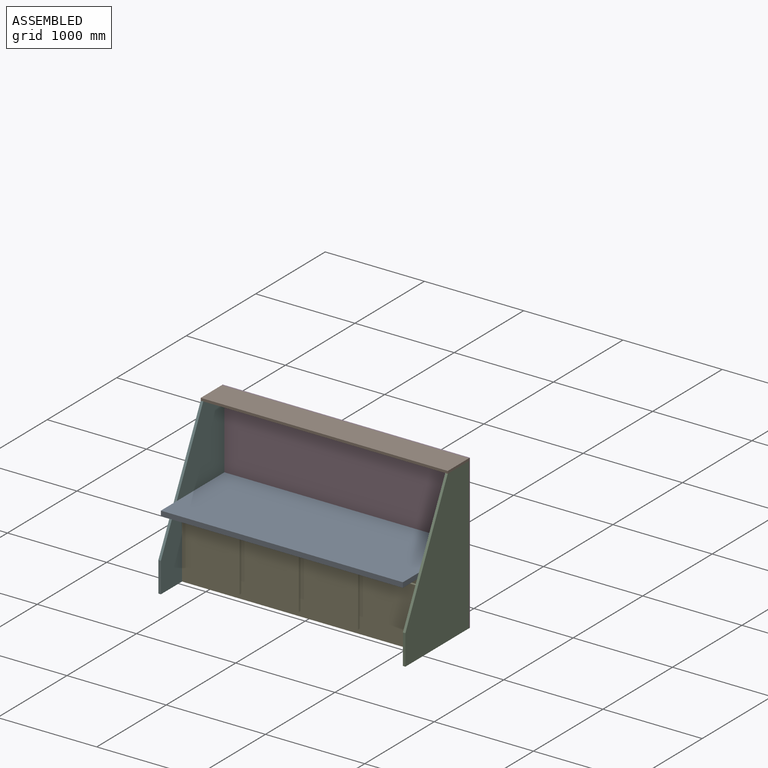
[diagram: assembled view]
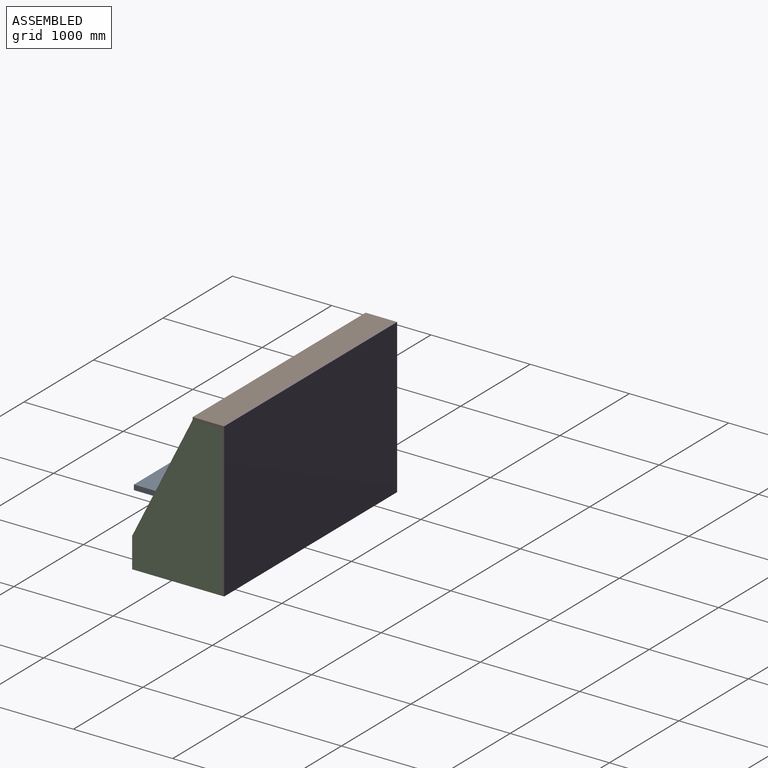
[diagram: assembled view, second angle]
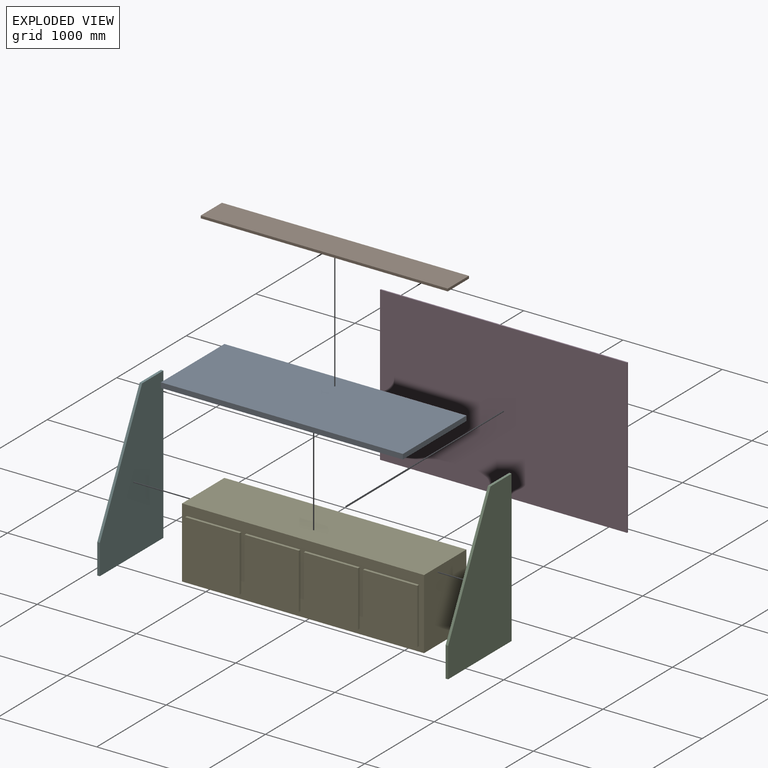
[diagram: exploded view]
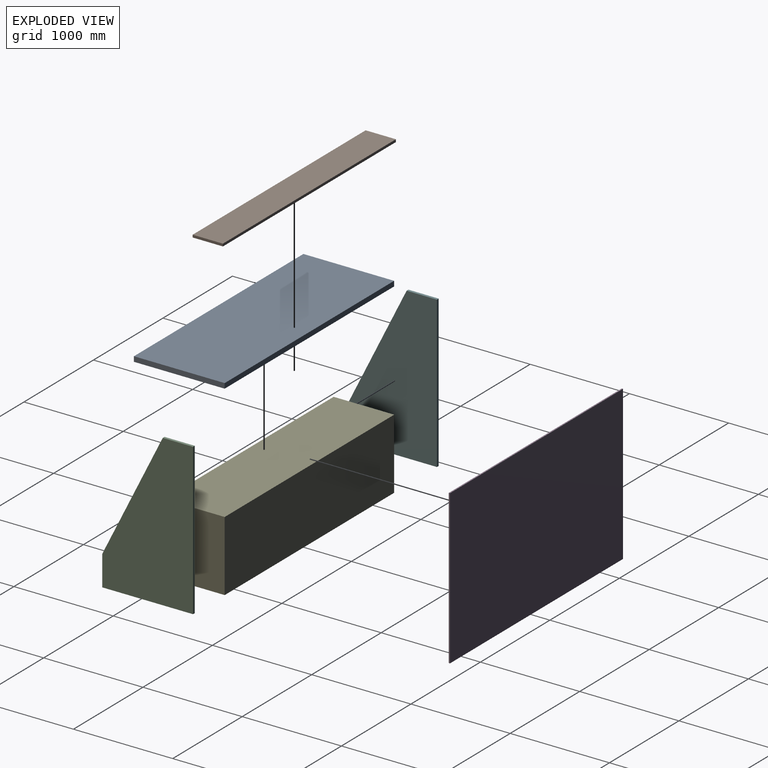
[diagram: exploded view, second angle]
ASSEMBLY  parts=6 mates=5
PART A: 6 faces, bbox 2438.4x914.4x50.8 mm
  f0: plane 2438.4x914.4mm, normal (0,0,1), area 2229673mm2, adj f1,f3,f4,f5
  f1: plane 2438.4x50.8mm, normal (0,-1,0), area 123870.7mm2, adj f0,f2,f4,f5
  f2: plane 2438.4x914.4mm, normal (0,0,-1), area 2229673mm2, adj f1,f3,f4,f5
  f3: plane 2438.4x50.8mm, normal (0,1,0), area 123870.7mm2, adj f0,f2,f4,f5
  f4: plane 914.4x50.8mm, normal (-1,0,0), area 46451.5mm2, adj f0,f1,f2,f3
  f5: plane 914.4x50.8mm, normal (1,0,0), area 46451.5mm2, adj f0,f1,f2,f3
PART B: 6 faces, bbox 2489.2x304.8x25.4 mm
  f0: plane 2489.2x25.4mm, normal (0,-1,0), area 63225.7mm2, adj f1,f3,f4,f5
  f1: plane 2489.2x304.8mm, normal (0,0,-1), area 758708.2mm2, adj f0,f2,f4,f5
  f2: plane 2489.2x25.4mm, normal (0,1,0), area 63225.7mm2, adj f1,f3,f4,f5
  f3: plane 2489.2x304.8mm, normal (0,0,1), area 758708.2mm2, adj f0,f2,f4,f5
  f4: plane 304.8x25.4mm, normal (-1,0,0), area 7741.9mm2, adj f0,f1,f2,f3
  f5: plane 304.8x25.4mm, normal (1,0,0), area 7741.9mm2, adj f0,f1,f2,f3
PART C: 7 faces, bbox 25.4x914.4x1524 mm
  f0: plane 304.8x25.4mm, normal (0,0,1), area 7741.9mm2, adj f1,f4,f5,f6
  f1: plane 1219.2x609.6mm, normal (0,-0.89,0.45), area 34622.9mm2, adj f0,f2,f5,f6
  f2: plane 304.8x25.4mm, normal (0,-1,0), area 7741.9mm2, adj f1,f3,f5,f6
  f3: plane 914.4x25.4mm, normal (0,0,-1), area 23225.8mm2, adj f2,f4,f5,f6
  f4: plane 1524x25.4mm, normal (0,1,0), area 38709.6mm2, adj f0,f3,f5,f6
  f5: plane 1524x914.4mm, normal (1,0,0), area 1021933.4mm2, adj f0,f1,f2,f3,f4
  f6: plane 1524x914.4mm, normal (-1,0,0), area 1021933.4mm2, adj f0,f1,f2,f3,f4
PART D: 6 faces, bbox 2489.2x12.7x1549.4 mm
  f0: plane 2489.2x12.7mm, normal (0,0,-1), area 31612.8mm2, adj f1,f3,f4,f5
  f1: plane 1549.4x12.7mm, normal (1,0,0), area 19677.4mm2, adj f0,f2,f4,f5
  f2: plane 2489.2x12.7mm, normal (0,0,1), area 31612.8mm2, adj f1,f3,f4,f5
  f3: plane 1549.4x12.7mm, normal (-1,0,0), area 19677.4mm2, adj f0,f2,f4,f5
  f4: plane 2489.2x1549.4mm, normal (0,1,0), area 3856766.5mm2, adj f0,f1,f2,f3
  f5: plane 2489.2x1549.4mm, normal (0,-1,0), area 3856766.5mm2, adj f0,f1,f2,f3
PART E: 26 faces, bbox 2438.4x635x711.2 mm
  f0: plane 2438.4x711.2mm, normal (0,-1,0), area 513547.4mm2, adj f1,f3,f4,f5,f6,f7,f8,f9
  f1: plane 2438.4x609.6mm, normal (0,0,-1), area 1486448.6mm2, adj f0,f2,f4,f5
  f2: plane 2438.4x711.2mm, normal (0,1,0), area 1734190.1mm2, adj f1,f3,f4,f5
  f3: plane 2438.4x609.6mm, normal (0,0,1), area 1486448.6mm2, adj f0,f2,f4,f5
  f4: plane 711.2x609.6mm, normal (-1,0,0), area 433547.5mm2, adj f0,f1,f2,f3
  f5: plane 711.2x609.6mm, normal (1,0,0), area 433547.5mm2, adj f0,f1,f2,f3
  f6: plane 558.8x25.4mm, normal (-1,0,0), area 14193.5mm2, adj f0,f7,f9,f10
  f7: plane 546.1x25.4mm, normal (0,0,-1), area 13870.9mm2, adj f0,f6,f8,f10
  f8: plane 558.8x25.4mm, normal (1,0,0), area 14193.5mm2, adj f0,f7,f9,f10
  f9: plane 546.1x25.4mm, normal (0,0,1), area 13870.9mm2, adj f0,f6,f8,f10
  f10: plane 558.8x546.1mm, normal (0,-1,0), area 305160.7mm2, adj f6,f7,f8,f9
  f11: plane 546.1x25.4mm, normal (0,0,-1), area 13870.9mm2, adj f0,f12,f14,f15
  f12: plane 558.8x25.4mm, normal (1,0,0), area 14193.5mm2, adj f0,f11,f13,f15
  f13: plane 546.1x25.4mm, normal (0,0,1), area 13870.9mm2, adj f0,f12,f14,f15
  f14: plane 558.8x25.4mm, normal (-1,0,0), area 14193.5mm2, adj f0,f11,f13,f15
  f15: plane 558.8x546.1mm, normal (0,-1,0), area 305160.7mm2, adj f11,f12,f13,f14
  f16: plane 546.1x25.4mm, normal (0,0,-1), area 13870.9mm2, adj f0,f17,f19,f20
  f17: plane 558.8x25.4mm, normal (1,0,0), area 14193.5mm2, adj f0,f16,f18,f20
  f18: plane 546.1x25.4mm, normal (0,0,1), area 13870.9mm2, adj f0,f17,f19,f20
  f19: plane 558.8x25.4mm, normal (-1,0,0), area 14193.5mm2, adj f0,f16,f18,f20
  f20: plane 558.8x546.1mm, normal (0,-1,0), area 305160.7mm2, adj f16,f17,f18,f19
  f21: plane 546.1x25.4mm, normal (0,0,-1), area 13870.9mm2, adj f0,f22,f24,f25
  f22: plane 558.8x25.4mm, normal (1,0,0), area 14193.5mm2, adj f0,f21,f23,f25
  f23: plane 546.1x25.4mm, normal (0,0,1), area 13870.9mm2, adj f0,f22,f24,f25
  f24: plane 558.8x25.4mm, normal (-1,0,0), area 14193.5mm2, adj f0,f21,f23,f25
  f25: plane 558.8x546.1mm, normal (0,-1,0), area 305160.7mm2, adj f21,f22,f23,f24
PART F: same geometry as C
PLACE A t=(220.12,-336.64,818.04)mm
PLACE B t=(245.52,319.58,1205.14)mm
PLACE C t=(220.12,-336.64,-344.26)mm
PLACE D t=(-992.81,577.76,453.02)mm
PLACE E t=(220.12,221.87,2.59)mm
PLACE F t=(-2243.68,-336.64,-344.26)mm
MATE fastened E.f1 <-> C.f3  axis (0,0,1) through (220.12,577.76,-344.26)mm
MATE fastened A.f2 <-> E.f3  axis (0,0,1) through (220.12,577.76,366.94)mm
MATE fastened F.f5 <-> E.f4  axis (1,0,0) through (-2218.28,577.76,-344.26)mm
MATE fastened C.f0 <-> B.f1  axis (0,0,1) through (245.52,577.76,1179.74)mm
MATE fastened D.f5 <-> B.f2  axis (0,-1,0) through (245.52,577.76,1205.14)mm
